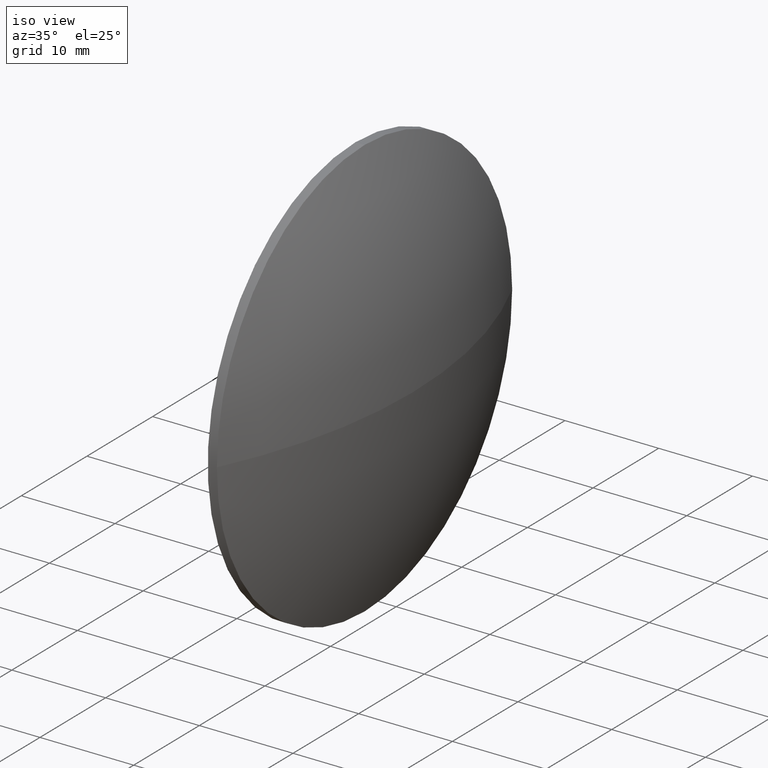
[diagram: clean part render]
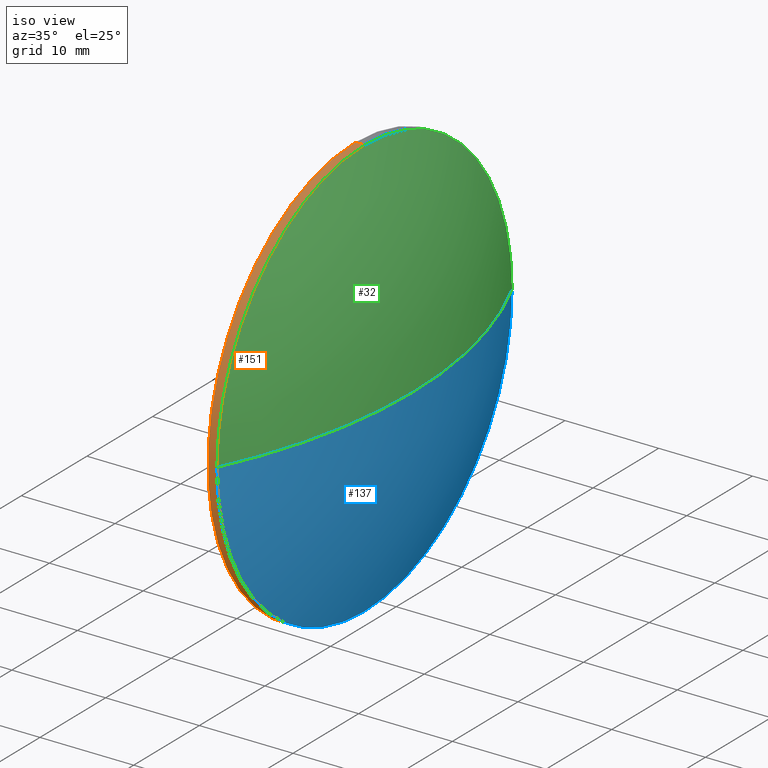
[diagram: same view with three faces highlighted in distinct colors, each labeled with its STEP entity id]
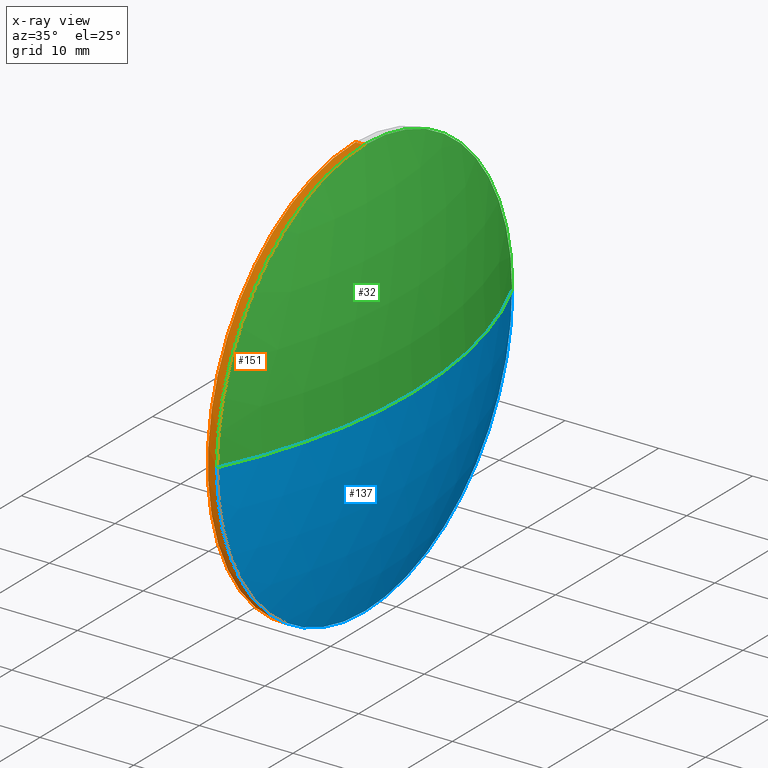
[diagram: x-ray of the same camera — body ghosted, the three highlighted faces saturated]
A machine part, iso view with three faces highlighted in distinct colors.
The next image is the same camera in x-ray (body ghosted, the three faces saturated) — at least one of them is partly hidden behind the body in this view.
Their STEP definitions:

[orange] entity #151 — the highlighted cylindrical surface (partial cylindrical patch) has radius 22.5 mm, axis along (-1, -0, -0).
#3 = LINE ( 'NONE', #85, #114 ) ;
#4 = DIRECTION ( 'NONE',  ( -1.000000000000000000, -0.0000000000000000000, -0.0000000000000000000 ) ) ;
#7 = CARTESIAN_POINT ( 'NONE',  ( 548.5191482803511500, 55.90797584289919100, 22.49999999999999300 ) ) ;
#13 = CIRCLE ( 'NONE', #134, 22.49999999999999300 ) ;
#15 = ORIENTED_EDGE ( 'NONE', *, *, #126, .F. ) ;
#17 = CARTESIAN_POINT ( 'NONE',  ( 543.8709406530288100, 55.90797584289919100, 22.49999999999999300 ) ) ;
#18 = ORIENTED_EDGE ( 'NONE', *, *, #124, .T. ) ;
#21 = CARTESIAN_POINT ( 'NONE',  ( 549.4891482803511700, 55.90797584289919100, 22.49999999999999300 ) ) ;
#28 = VERTEX_POINT ( 'NONE', #127 ) ;
#36 = CARTESIAN_POINT ( 'NONE',  ( 548.5191482803511500, 55.90797584289919100, -22.49999999999999300 ) ) ;
#37 = DIRECTION ( 'NONE',  ( -1.000000000000000000, -0.0000000000000000000, -0.0000000000000000000 ) ) ;
#39 = CARTESIAN_POINT ( 'NONE',  ( 548.5191482803511500, 55.90797584289919100, 0.0000000000000000000 ) ) ;
#52 = DIRECTION ( 'NONE',  ( 0.0000000000000000000, 0.0000000000000000000, 1.000000000000000000 ) ) ;
#54 = DIRECTION ( 'NONE',  ( -1.000000000000000000, -0.0000000000000000000, -0.0000000000000000000 ) ) ;
#56 = CIRCLE ( 'NONE', #92, 22.49999999999999300 ) ;
#58 = EDGE_CURVE ( 'NONE', #28, #71, #3, .T. ) ;
#62 = DIRECTION ( 'NONE',  ( -1.000000000000000000, -0.0000000000000000000, -0.0000000000000000000 ) ) ;
#64 = VERTEX_POINT ( 'NONE', #100 ) ;
#66 = CARTESIAN_POINT ( 'NONE',  ( 549.4891482803511700, 55.90797584289919100, 0.0000000000000000000 ) ) ;
#68 = CARTESIAN_POINT ( 'NONE',  ( 543.8709406530288100, 55.90797584289919100, 0.0000000000000000000 ) ) ;
#70 = ORIENTED_EDGE ( 'NONE', *, *, #80, .T. ) ;
#71 = VERTEX_POINT ( 'NONE', #36 ) ;
#80 = EDGE_CURVE ( 'NONE', #95, #166, #81, .T. ) ;
#81 = LINE ( 'NONE', #17, #125 ) ;
#83 = EDGE_CURVE ( 'NONE', #28, #64, #121, .T. ) ;
#85 = CARTESIAN_POINT ( 'NONE',  ( 543.8709406530288100, 55.90797584289919100, -22.49999999999999300 ) ) ;
#86 = FACE_OUTER_BOUND ( 'NONE', #117, .T. ) ;
#92 = AXIS2_PLACEMENT_3D ( 'NONE', #66, #130, #116 ) ;
#95 = VERTEX_POINT ( 'NONE', #21 ) ;
#100 = CARTESIAN_POINT ( 'NONE',  ( 549.4891482803511700, 33.40797584289919100, -2.755455298081540000E-015 ) ) ;
#101 = AXIS2_PLACEMENT_3D ( 'NONE', #170, #156, #115 ) ;
#114 = VECTOR ( 'NONE', #4, 1000.000000000000000 ) ;
#115 = DIRECTION ( 'NONE',  ( 0.0000000000000000000, 0.0000000000000000000, 1.000000000000000000 ) ) ;
#116 = DIRECTION ( 'NONE',  ( 0.0000000000000000000, 0.0000000000000000000, 1.000000000000000000 ) ) ;
#117 = EDGE_LOOP ( 'NONE', ( #169, #150, #18, #70, #15 ) ) ;
#120 = CYLINDRICAL_SURFACE ( 'NONE', #162, 22.49999999999999300 ) ;
#121 = CIRCLE ( 'NONE', #101, 22.49999999999999300 ) ;
#124 = EDGE_CURVE ( 'NONE', #64, #95, #56, .T. ) ;
#125 = VECTOR ( 'NONE', #62, 1000.000000000000000 ) ;
#126 = EDGE_CURVE ( 'NONE', #71, #166, #13, .T. ) ;
#127 = CARTESIAN_POINT ( 'NONE',  ( 549.4891482803511700, 55.90797584289919100, -22.49999999999999300 ) ) ;
#130 = DIRECTION ( 'NONE',  ( -1.000000000000000000, -0.0000000000000000000, -0.0000000000000000000 ) ) ;
#134 = AXIS2_PLACEMENT_3D ( 'NONE', #39, #37, #176 ) ;
#150 = ORIENTED_EDGE ( 'NONE', *, *, #83, .T. ) ;
#151 = ADVANCED_FACE ( 'NONE', ( #86 ), #120, .T. ) ;
#156 = DIRECTION ( 'NONE',  ( -1.000000000000000000, -0.0000000000000000000, -0.0000000000000000000 ) ) ;
#162 = AXIS2_PLACEMENT_3D ( 'NONE', #68, #54, #52 ) ;
#166 = VERTEX_POINT ( 'NONE', #7 ) ;
#169 = ORIENTED_EDGE ( 'NONE', *, *, #58, .F. ) ;
#170 = CARTESIAN_POINT ( 'NONE',  ( 549.4891482803511700, 55.90797584289919100, 0.0000000000000000000 ) ) ;
#176 = DIRECTION ( 'NONE',  ( 0.0000000000000000000, 0.0000000000000000000, 1.000000000000000000 ) ) ;

[blue] entity #137 — the highlighted spherical surface has radius 51.9071 mm.
#5 = DIRECTION ( 'NONE',  ( 0.0000000000000000000, 0.0000000000000000000, 1.000000000000000000 ) ) ;
#9 = FACE_OUTER_BOUND ( 'NONE', #109, .T. ) ;
#19 = CIRCLE ( 'NONE', #82, 51.90710526315789500 ) ;
#22 = DIRECTION ( 'NONE',  ( 0.0000000000000000000, 1.000000000000000000, 0.0000000000000000000 ) ) ;
#28 = VERTEX_POINT ( 'NONE', #127 ) ;
#33 = DIRECTION ( 'NONE',  ( -0.0000000000000000000, 0.0000000000000000000, 1.000000000000000000 ) ) ;
#35 = CARTESIAN_POINT ( 'NONE',  ( 554.6191482803511700, 55.90797584289915500, 0.0000000000000000000 ) ) ;
#42 = VERTEX_POINT ( 'NONE', #35 ) ;
#43 = ORIENTED_EDGE ( 'NONE', *, *, #83, .F. ) ;
#47 = EDGE_CURVE ( 'NONE', #42, #112, #19, .T. ) ;
#49 = DIRECTION ( 'NONE',  ( 1.000000000000000000, 0.0000000000000000000, 0.0000000000000000000 ) ) ;
#50 = CARTESIAN_POINT ( 'NONE',  ( 502.7120430171933100, 55.90797584289915500, 0.0000000000000000000 ) ) ;
#57 = EDGE_CURVE ( 'NONE', #42, #64, #154, .T. ) ;
#64 = VERTEX_POINT ( 'NONE', #100 ) ;
#65 = CARTESIAN_POINT ( 'NONE',  ( 549.4891482803511700, 55.90797584289919100, 0.0000000000000000000 ) ) ;
#82 = AXIS2_PLACEMENT_3D ( 'NONE', #50, #33, #49 ) ;
#83 = EDGE_CURVE ( 'NONE', #28, #64, #121, .T. ) ;
#93 = CARTESIAN_POINT ( 'NONE',  ( 502.7120430171933100, 55.90797584289915500, 0.0000000000000000000 ) ) ;
#94 = CARTESIAN_POINT ( 'NONE',  ( 549.4891482803511700, 78.40797584289916200, 0.0000000000000000000 ) ) ;
#99 = CARTESIAN_POINT ( 'NONE',  ( 502.7120430171933100, 55.90797584289915500, 0.0000000000000000000 ) ) ;
#100 = CARTESIAN_POINT ( 'NONE',  ( 549.4891482803511700, 33.40797584289919100, -2.755455298081540000E-015 ) ) ;
#101 = AXIS2_PLACEMENT_3D ( 'NONE', #170, #156, #115 ) ;
#105 = SPHERICAL_SURFACE ( 'NONE', #185, 51.90710526315791600 ) ;
#106 = ORIENTED_EDGE ( 'NONE', *, *, #47, .F. ) ;
#109 = EDGE_LOOP ( 'NONE', ( #106, #133, #43, #180 ) ) ;
#112 = VERTEX_POINT ( 'NONE', #94 ) ;
#115 = DIRECTION ( 'NONE',  ( 0.0000000000000000000, 0.0000000000000000000, 1.000000000000000000 ) ) ;
#119 = DIRECTION ( 'NONE',  ( -0.0000000000000000000, 0.0000000000000000000, -1.000000000000000000 ) ) ;
#121 = CIRCLE ( 'NONE', #101, 22.49999999999999300 ) ;
#127 = CARTESIAN_POINT ( 'NONE',  ( 549.4891482803511700, 55.90797584289919100, -22.49999999999999300 ) ) ;
#133 = ORIENTED_EDGE ( 'NONE', *, *, #57, .T. ) ;
#137 = ADVANCED_FACE ( 'NONE', ( #9 ), #105, .T. ) ;
#140 = DIRECTION ( 'NONE',  ( 0.0000000000000000000, 1.000000000000000000, 1.224646799147353500E-016 ) ) ;
#147 = CIRCLE ( 'NONE', #179, 22.49999999999999300 ) ;
#153 = DIRECTION ( 'NONE',  ( 0.0000000000000000000, 1.224646799147353200E-016, -1.000000000000000000 ) ) ;
#154 = CIRCLE ( 'NONE', #165, 51.90710526315790900 ) ;
#156 = DIRECTION ( 'NONE',  ( -1.000000000000000000, -0.0000000000000000000, -0.0000000000000000000 ) ) ;
#165 = AXIS2_PLACEMENT_3D ( 'NONE', #99, #153, #140 ) ;
#170 = CARTESIAN_POINT ( 'NONE',  ( 549.4891482803511700, 55.90797584289919100, 0.0000000000000000000 ) ) ;
#172 = DIRECTION ( 'NONE',  ( -1.000000000000000000, -0.0000000000000000000, -0.0000000000000000000 ) ) ;
#177 = EDGE_CURVE ( 'NONE', #112, #28, #147, .T. ) ;
#179 = AXIS2_PLACEMENT_3D ( 'NONE', #65, #172, #5 ) ;
#180 = ORIENTED_EDGE ( 'NONE', *, *, #177, .F. ) ;
#185 = AXIS2_PLACEMENT_3D ( 'NONE', #93, #119, #22 ) ;

[green] entity #32 — the highlighted spherical surface has radius 51.9071 mm.
#10 = SPHERICAL_SURFACE ( 'NONE', #67, 51.90710526315791600 ) ;
#12 = ORIENTED_EDGE ( 'NONE', *, *, #47, .T. ) ;
#19 = CIRCLE ( 'NONE', #82, 51.90710526315789500 ) ;
#21 = CARTESIAN_POINT ( 'NONE',  ( 549.4891482803511700, 55.90797584289919100, 22.49999999999999300 ) ) ;
#32 = ADVANCED_FACE ( 'NONE', ( #51 ), #10, .T. ) ;
#33 = DIRECTION ( 'NONE',  ( -0.0000000000000000000, 0.0000000000000000000, 1.000000000000000000 ) ) ;
#35 = CARTESIAN_POINT ( 'NONE',  ( 554.6191482803511700, 55.90797584289915500, 0.0000000000000000000 ) ) ;
#42 = VERTEX_POINT ( 'NONE', #35 ) ;
#47 = EDGE_CURVE ( 'NONE', #42, #112, #19, .T. ) ;
#49 = DIRECTION ( 'NONE',  ( 1.000000000000000000, 0.0000000000000000000, 0.0000000000000000000 ) ) ;
#50 = CARTESIAN_POINT ( 'NONE',  ( 502.7120430171933100, 55.90797584289915500, 0.0000000000000000000 ) ) ;
#51 = FACE_OUTER_BOUND ( 'NONE', #148, .T. ) ;
#53 = DIRECTION ( 'NONE',  ( 0.0000000000000000000, 0.0000000000000000000, 1.000000000000000000 ) ) ;
#56 = CIRCLE ( 'NONE', #92, 22.49999999999999300 ) ;
#57 = EDGE_CURVE ( 'NONE', #42, #64, #154, .T. ) ;
#64 = VERTEX_POINT ( 'NONE', #100 ) ;
#66 = CARTESIAN_POINT ( 'NONE',  ( 549.4891482803511700, 55.90797584289919100, 0.0000000000000000000 ) ) ;
#67 = AXIS2_PLACEMENT_3D ( 'NONE', #152, #113, #171 ) ;
#75 = CIRCLE ( 'NONE', #104, 22.49999999999999300 ) ;
#76 = ORIENTED_EDGE ( 'NONE', *, *, #124, .F. ) ;
#82 = AXIS2_PLACEMENT_3D ( 'NONE', #50, #33, #49 ) ;
#89 = ORIENTED_EDGE ( 'NONE', *, *, #145, .F. ) ;
#92 = AXIS2_PLACEMENT_3D ( 'NONE', #66, #130, #116 ) ;
#94 = CARTESIAN_POINT ( 'NONE',  ( 549.4891482803511700, 78.40797584289916200, 0.0000000000000000000 ) ) ;
#95 = VERTEX_POINT ( 'NONE', #21 ) ;
#99 = CARTESIAN_POINT ( 'NONE',  ( 502.7120430171933100, 55.90797584289915500, 0.0000000000000000000 ) ) ;
#100 = CARTESIAN_POINT ( 'NONE',  ( 549.4891482803511700, 33.40797584289919100, -2.755455298081540000E-015 ) ) ;
#104 = AXIS2_PLACEMENT_3D ( 'NONE', #142, #159, #53 ) ;
#112 = VERTEX_POINT ( 'NONE', #94 ) ;
#113 = DIRECTION ( 'NONE',  ( -0.0000000000000000000, 0.0000000000000000000, -1.000000000000000000 ) ) ;
#116 = DIRECTION ( 'NONE',  ( 0.0000000000000000000, 0.0000000000000000000, 1.000000000000000000 ) ) ;
#123 = ORIENTED_EDGE ( 'NONE', *, *, #57, .F. ) ;
#124 = EDGE_CURVE ( 'NONE', #64, #95, #56, .T. ) ;
#130 = DIRECTION ( 'NONE',  ( -1.000000000000000000, -0.0000000000000000000, -0.0000000000000000000 ) ) ;
#140 = DIRECTION ( 'NONE',  ( 0.0000000000000000000, 1.000000000000000000, 1.224646799147353500E-016 ) ) ;
#142 = CARTESIAN_POINT ( 'NONE',  ( 549.4891482803511700, 55.90797584289919100, 0.0000000000000000000 ) ) ;
#145 = EDGE_CURVE ( 'NONE', #95, #112, #75, .T. ) ;
#148 = EDGE_LOOP ( 'NONE', ( #123, #12, #89, #76 ) ) ;
#152 = CARTESIAN_POINT ( 'NONE',  ( 502.7120430171933100, 55.90797584289915500, 0.0000000000000000000 ) ) ;
#153 = DIRECTION ( 'NONE',  ( 0.0000000000000000000, 1.224646799147353200E-016, -1.000000000000000000 ) ) ;
#154 = CIRCLE ( 'NONE', #165, 51.90710526315790900 ) ;
#159 = DIRECTION ( 'NONE',  ( -1.000000000000000000, -0.0000000000000000000, -0.0000000000000000000 ) ) ;
#165 = AXIS2_PLACEMENT_3D ( 'NONE', #99, #153, #140 ) ;
#171 = DIRECTION ( 'NONE',  ( 0.0000000000000000000, 1.000000000000000000, 0.0000000000000000000 ) ) ;